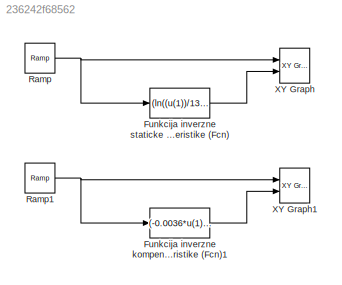
MODEL slx_236242f68562
KIND model
CONFIG AbsTol = auto
CONFIG EnableMultiTasking = off
CONFIG FixedStep = auto
CONFIG MaxStep = auto
CONFIG MinStep = auto
CONFIG RelTol = 1e-3
CONFIG SampleTimeConstraint = Unconstrained
CONFIG Solver = VariableStepAuto
CONFIG SolverName = VariableStepAuto
CONFIG StartTime = 0.0
CONFIG StopTime = 600.0
BLOCK [Fcn] Funkcija inverzne kompenzirane karakteristike (Fcn)1
  Expr = (-0.0036*u(1) - 1.77)
BLOCK [Fcn] Funkcija inverzne staticke karakteristike (Fcn)
  Expr = (ln((u(1))/13)-3)/(2)
BLOCK [Reference] Ramp  REF=simulink/Sources/Ramp
  Ports = [0, 1]
  SourceBlock = simulink/Sources/Ramp
  SourceProductBaseCode = SL
  SourceProductName = Simulink
  SourceType = Ramp
BLOCK [Reference] Ramp1  REF=simulink/Sources/Ramp
  Ports = [0, 1]
  SourceBlock = simulink/Sources/Ramp
  SourceProductBaseCode = SL
  SourceProductName = Simulink
  SourceType = Ramp
BLOCK [Reference] XY Graph  REF=simulink/Sinks/XY Graph
  Ports = [2]
  SourceBlock = simulink/Sinks/XY Graph
  SourceProductBaseCode = SL
  SourceProductName = Simulink
  SourceType = XY scope.
BLOCK [Reference] XY Graph1  REF=simulink/Sinks/XY Graph
  Ports = [2]
  SourceBlock = simulink/Sinks/XY Graph
  SourceProductBaseCode = SL
  SourceProductName = Simulink
  SourceType = XY scope.
LINE Funkcija inverzne kompenzirane karakteristike (Fcn)1:1 -> XY Graph1:2
LINE Funkcija inverzne staticke karakteristike (Fcn):1 -> XY Graph:2
NET Ramp1:1 -> Funkcija inverzne kompenzirane karakteristike (Fcn)1:1, XY Graph1:1
NET Ramp:1 -> Funkcija inverzne staticke karakteristike (Fcn):1, XY Graph:1
note: NET lines group one-source signal fan-out (src -> all destinations, sorted); 1:1 wires keep LINE
